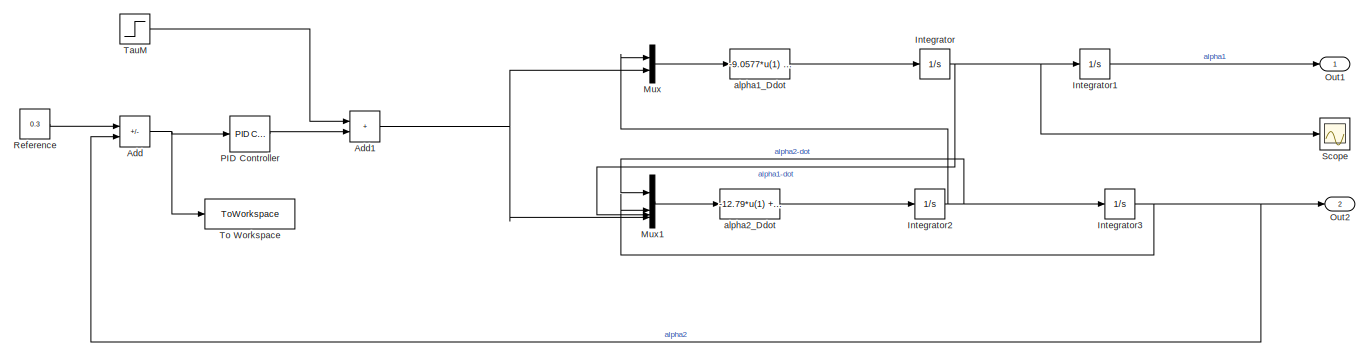
[diagram: root canvas - part 1/2, top left region]
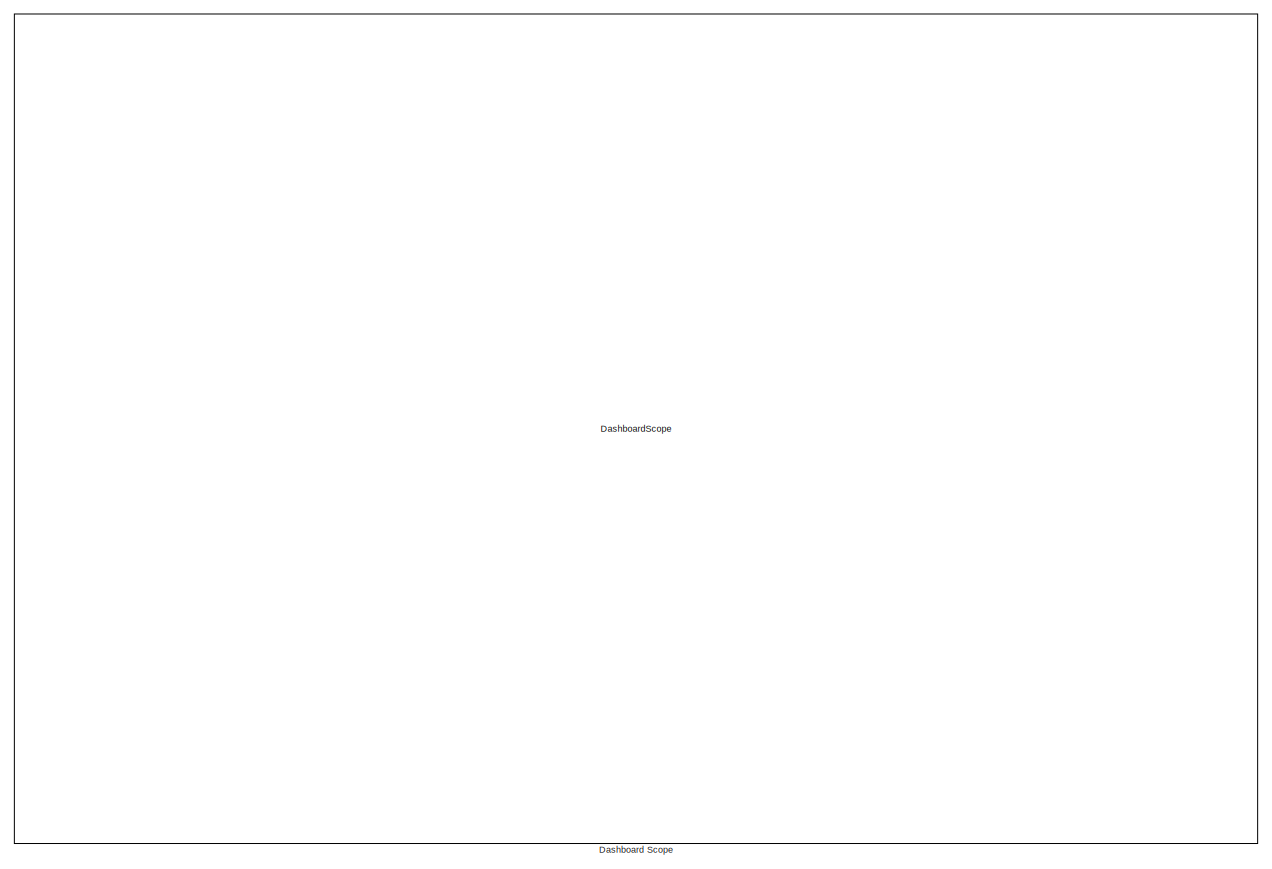
[diagram: root canvas - part 2/2, right side, full height]
MODEL slx_94fc17b924d6
KIND model
CONFIG AbsTol = auto
CONFIG EnableMultiTasking = off
CONFIG FixedStep = auto
CONFIG MaxStep = auto
CONFIG MinStep = auto
CONFIG RelTol = 1e-3
CONFIG SampleTimeConstraint = Unconstrained
CONFIG SolverName = VariableStepAuto
CONFIG StartTime = 0.0
CONFIG StopTime = 150
BLOCK [Sum] Add
  IconShape = rectangular
  Inputs = +-
BLOCK [Sum] Add1
  IconShape = rectangular
BLOCK [DashboardScope] Dashboard Scope
  AttributesFormatString = Name = <Alpha2 PID response with Kp = 0.0153, Ki = 0.0611, Kd = 9.0569>
  LegendPosition = InsideRight
  Ymax = 5
  Ymin = 0
BLOCK [Integrator] Integrator
  ContinuousStateAttributes = "alpha1_dot"
  LowerSaturationLimit = -pi/2
  UpperSaturationLimit = pi/2
BLOCK [Integrator] Integrator1
  ContinuousStateAttributes = "alpha1"
BLOCK [Integrator] Integrator2
  ContinuousStateAttributes = "alpha2_dot"
  LowerSaturationLimit = -pi/2
  UpperSaturationLimit = pi/2
BLOCK [Integrator] Integrator3
  ContinuousStateAttributes = "alpha2"
BLOCK [Mux] Mux
  DisplayOption = bar
  Inputs = 2
BLOCK [Mux] Mux1
  DisplayOption = bar
BLOCK [Outport] Out1
BLOCK [Outport] Out2
  Port = 2
BLOCK [Reference] PID Controller  REF=slpidlib/PID Controller
  LibrarySourceBlock = simulink/Continuous/PID Controller
  SourceBlock = slpidlib/PID Controller
  SourceType = PID 1dof
BLOCK [Constant] Reference
  Value = 0.3
BLOCK [Scope] Scope
  Floating = off
  NumInputPorts = 1
  ScopeSpecificationString = Simulink.scopes.TimeScopeBlockCfg('CurrentConfiguration', extmgr.ConfigurationSet(extmgr.Configuration('Core','General UI',true),extmgr.Configuration('Core','Source UI',true),extmgr.Configuration('Sources','WiredSimulink',true,'SampleTime','0.03'),extmgr.Configuration('Visuals','Time Domain',true,'PlotType','Line','SerializedDisplays',{struct('MinYLimReal','-450','MaxYLimReal','50','YLabelReal','A...<+1790ch>
BLOCK [Step] TauM
  SampleTime = 0
BLOCK [ToWorkspace] To Workspace
  FixptAsFi = on
  MaxDataPoints = inf
  SampleTime = -1
  VariableName = PitchFB_Error
BLOCK [Fcn] alpha1_Ddot
  Expr = -9.0577*u(1) + 192.3077*u(2)
BLOCK [Fcn] alpha2_Ddot
  Expr = -12.79*u(1) + 12.2*u(2) + 1.482*u(3) -14.91*u(4)
NET Add1:1 -> Mux1:4, Mux:2
NET Add:1 -> PID Controller:1, To Workspace:1
LINE Integrator1:1 -> Out1:1
NET Integrator2:1 -> Integrator3:1, Mux1:1, Mux:1
NET Integrator3:1 -> Add:2, Mux1:2, Out2:1
NET Integrator:1 -> Integrator1:1, Mux1:3, Scope:1
LINE Mux1:1 -> alpha2_Ddot:1
LINE Mux:1 -> alpha1_Ddot:1
LINE PID Controller:1 -> Add1:2
LINE Reference:1 -> Add:1
LINE TauM:1 -> Add1:1
LINE alpha1_Ddot:1 -> Integrator:1
LINE alpha2_Ddot:1 -> Integrator2:1
note: NET lines group one-source signal fan-out (src -> all destinations, sorted); 1:1 wires keep LINE
